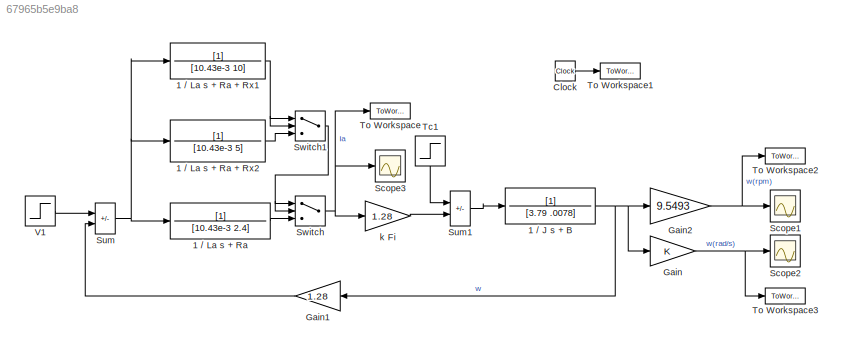
MODEL slx_67965b5e9ba8
KIND model
CONFIG AbsTol = auto
CONFIG EnableMultiTasking = on
CONFIG FixedStep = auto
CONFIG MaxStep = auto
CONFIG MinStep = auto
CONFIG RelTol = 1e-3
CONFIG SampleTimeConstraint = Unconstrained
CONFIG SolverName = ode45
CONFIG StartTime = 0.0
CONFIG StopTime = 200
BLOCK [TransferFcn] 1 // J s + B
  Denominator = [3.79 .0078]
BLOCK [TransferFcn] 1 // La s + Ra
  Denominator = [10.43e-3 2.4]
BLOCK [TransferFcn] 1 // La s + Ra + Rx1
  Denominator = [10.43e-3 10]
BLOCK [TransferFcn] 1 // La s + Ra + Rx2
  Denominator = [10.43e-3 5]
BLOCK [Clock] Clock
BLOCK [Gain] Gain
BLOCK [Gain] Gain1
  Gain = 1.28
  NameLocation = top
  OutDataTypeStr = Inherit: Same as input
  ParamDataTypeStr = Inherit: Same as input
  SaturateOnIntegerOverflow = on
BLOCK [Gain] Gain2
  Gain = 9.5493
  OutDataTypeStr = Inherit: Same as input
  ParamDataTypeStr = Inherit: Same as input
  SaturateOnIntegerOverflow = on
BLOCK [Scope] Scope1
  Floating = off
  NumInputPorts = 1
  ScopeSpecificationString = Simulink.scopes.TimeScopeBlockCfg('CurrentConfiguration', extmgr.ConfigurationSet(extmgr.Configuration('Core','General UI',true,'FigureColor',[1 1 1]),extmgr.Configuration('Core','Source UI',true),extmgr.Configuration('Sources','WiredSimulink',true),extmgr.Configuration('Visuals','Time Domain',true,'SerializedDisplays',{struct('MinYLimReal','-200.39069','MaxYLimReal','1803.51621','YLabelReal','','...<+1944ch>
BLOCK [Scope] Scope2
  Floating = off
  NumInputPorts = 1
  ScopeSpecificationString = Simulink.scopes.TimeScopeBlockCfg('CurrentConfiguration', extmgr.ConfigurationSet(extmgr.Configuration('Core','General UI',true,'FigureColor',[1 1 1]),extmgr.Configuration('Core','Source UI',true),extmgr.Configuration('Sources','WiredSimulink',true,'DataLoggingVariableName','ScopeData2'),extmgr.Configuration('Visuals','Time Domain',true,'SerializedDisplays',{struct('MinYLimReal','-20.98486','MaxYL...<+1925ch>
BLOCK [Scope] Scope3
  Floating = off
  NumInputPorts = 1
  ScopeSpecificationString = Simulink.scopes.TimeScopeBlockCfg('CurrentConfiguration', extmgr.ConfigurationSet(extmgr.Configuration('Core','General UI',true,'FigureColor',[1 1 1]),extmgr.Configuration('Core','Source UI',true),extmgr.Configuration('Sources','WiredSimulink',true,'DataLoggingVariableName','ScopeData1'),extmgr.Configuration('Visuals','Time Domain',true,'SerializedDisplays',{struct('MinYLimReal','-2.7486','MaxYLim...<+1938ch>
BLOCK [Sum] Sum
  IconShape = rectangular
  InputSameDT = on
  Inputs = +-
  OutDataTypeStr = Inherit: Same as first input
  SaturateOnIntegerOverflow = on
BLOCK [Sum] Sum1
  IconShape = rectangular
  InputSameDT = on
  Inputs = -+
  OutDataTypeStr = Inherit: Same as first input
  SaturateOnIntegerOverflow = on
BLOCK [Switch] Switch
BLOCK [Switch] Switch1
  Threshold = 10
BLOCK [Step] Tc1
  After = 20
  NameLocation = right
  SampleTime = 0
  Time = 100
BLOCK [ToWorkspace] To Workspace
  FixptAsFi = on
  MaxDataPoints = inf
  SampleTime = -1
  VariableName = Ia
BLOCK [ToWorkspace] To Workspace1
  FixptAsFi = on
  MaxDataPoints = inf
  SampleTime = -1
  VariableName = time
BLOCK [ToWorkspace] To Workspace2
  FixptAsFi = on
  MaxDataPoints = inf
  SampleTime = -1
  VariableName = w1
BLOCK [ToWorkspace] To Workspace3
  FixptAsFi = on
  MaxDataPoints = inf
  SampleTime = -1
  VariableName = w2
BLOCK [Step] V1
  After = 220
  SampleTime = 0
BLOCK [Gain] k Fi
  Gain = 1.28
  OutDataTypeStr = Inherit: Same as input
  ParamDataTypeStr = Inherit: Same as input
  SaturateOnIntegerOverflow = on
NET 1 // J s + B:1 -> Gain1:1, Gain2:1, Gain:1
NET 1 // La s + Ra + Rx1:1 -> Switch1:1, Switch1:2
LINE 1 // La s + Ra + Rx2:1 -> Switch1:3
LINE 1 // La s + Ra:1 -> Switch:3
LINE Clock:1 -> To Workspace1:1
LINE Gain1:1 -> Sum:2
NET Gain2:1 -> Scope1:1, To Workspace2:1
NET Gain:1 -> Scope2:1, To Workspace3:1
LINE Sum1:1 -> 1 // J s + B:1
NET Sum:1 -> 1 // La s + Ra + Rx1:1, 1 // La s + Ra + Rx2:1, 1 // La s + Ra:1
NET Switch1:1 -> Switch:1, Switch:2
NET Switch:1 -> Scope3:1, To Workspace:1, k Fi:1
LINE Tc1:1 -> Sum1:1
LINE V1:1 -> Sum:1
LINE k Fi:1 -> Sum1:2
note: NET lines group one-source signal fan-out (src -> all destinations, sorted); 1:1 wires keep LINE
